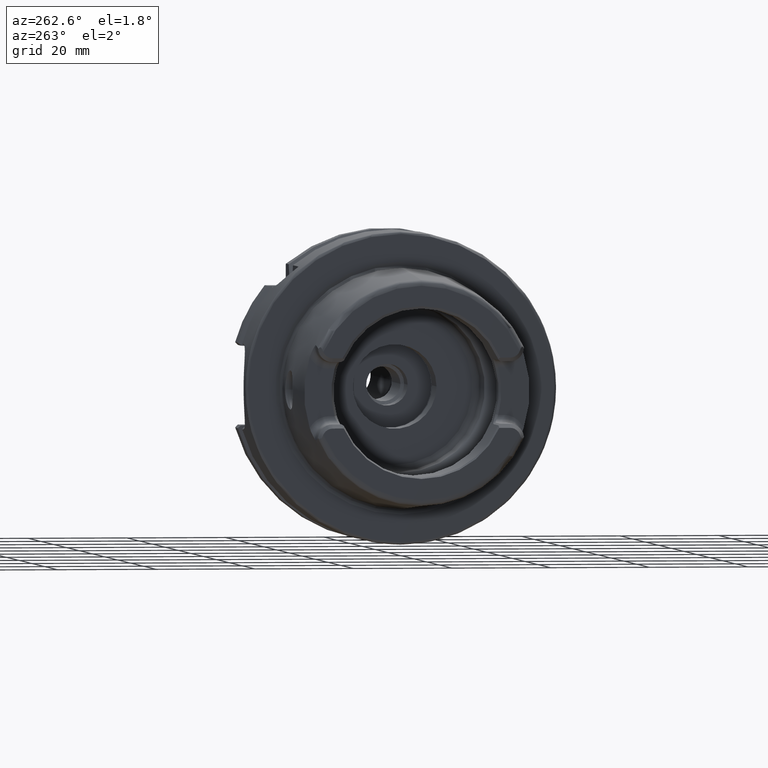
[diagram: clean part render]
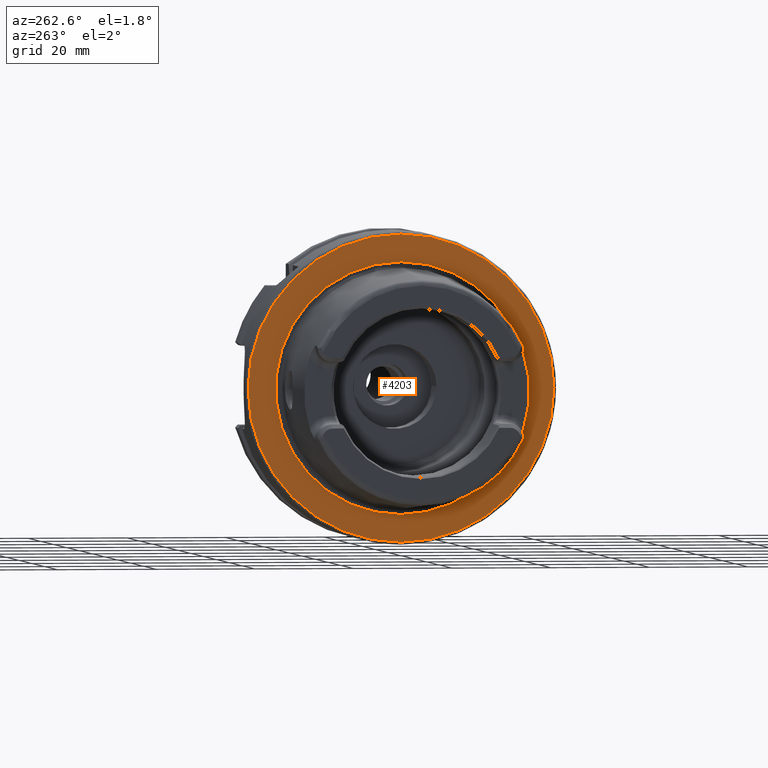
[diagram: same view with one face highlighted and labeled with its STEP entity id]
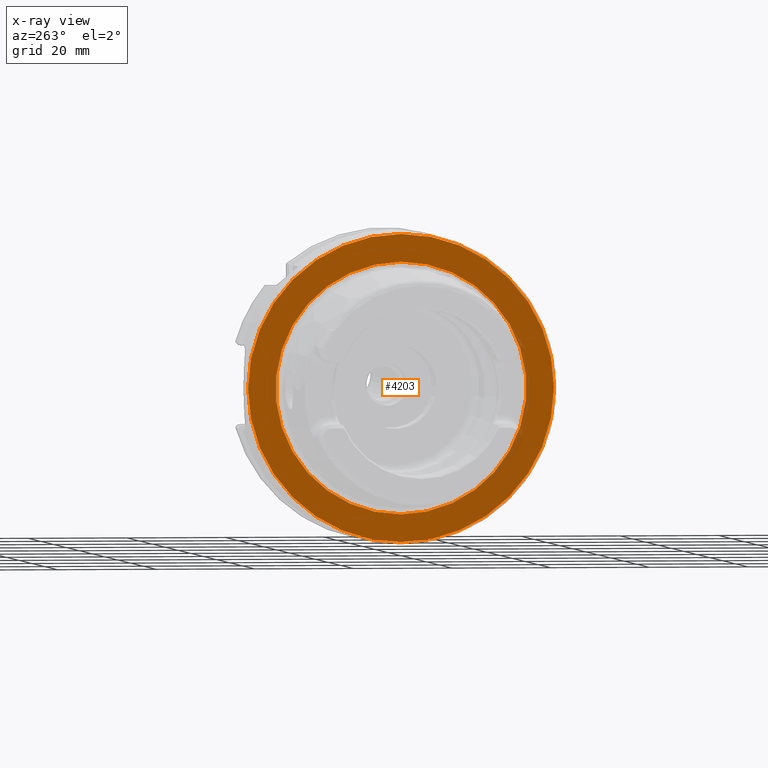
[diagram: x-ray of the same camera — body ghosted, the highlighted face saturated]
A machine part, auxiliary view. The second image highlights one B-rep face of the part: STEP entity #4203.
The next image is the same camera in x-ray: the body ghosted, the highlighted face saturated — about 3% of this face is hidden behind the body in this view.
In plain terms, the highlighted planar face has unit normal (1, 0, 0).
Its self-contained STEP definition (entity closure, byte-faithful):
#1074=CARTESIAN_POINT('',(0.E0,0.E0,0.E0));
#1075=DIRECTION('',(1.E0,0.E0,0.E0));
#1076=DIRECTION('',(0.E0,0.E0,-1.E0));
#1077=AXIS2_PLACEMENT_3D('',#1074,#1075,#1076);
#1079=CARTESIAN_POINT('',(0.E0,0.E0,0.E0));
#1080=DIRECTION('',(1.E0,0.E0,0.E0));
#1081=DIRECTION('',(0.E0,0.E0,1.E0));
#1082=AXIS2_PLACEMENT_3D('',#1079,#1080,#1081);
#1084=CARTESIAN_POINT('',(0.E0,0.E0,0.E0));
#1085=DIRECTION('',(-1.E0,0.E0,0.E0));
#1086=DIRECTION('',(0.E0,0.E0,1.E0));
#1087=AXIS2_PLACEMENT_3D('',#1084,#1085,#1086);
#1089=CARTESIAN_POINT('',(0.E0,0.E0,0.E0));
#1090=DIRECTION('',(-1.E0,0.E0,0.E0));
#1091=DIRECTION('',(0.E0,0.E0,-1.E0));
#1092=AXIS2_PLACEMENT_3D('',#1089,#1090,#1091);
#2755=CARTESIAN_POINT('',(0.E0,0.E0,-2.54204E1));
#2756=CARTESIAN_POINT('',(0.E0,0.E0,2.54204E1));
#2757=VERTEX_POINT('',#2755);
#2758=VERTEX_POINT('',#2756);
#3084=CARTESIAN_POINT('',(0.E0,0.E0,3.1E1));
#3085=CARTESIAN_POINT('',(0.E0,1.138921523207E-14,-3.1E1));
#3086=VERTEX_POINT('',#3084);
#3087=VERTEX_POINT('',#3085);
#4187=CARTESIAN_POINT('',(0.E0,0.E0,0.E0));
#4188=DIRECTION('',(1.E0,0.E0,0.E0));
#4189=DIRECTION('',(0.E0,0.E0,1.E0));
#4190=AXIS2_PLACEMENT_3D('',#4187,#4188,#4189);
#4191=PLANE('',#4190);
#4192=ORIENTED_EDGE('',*,*,#4177,.F.);
#4194=ORIENTED_EDGE('',*,*,#4193,.F.);
#4195=EDGE_LOOP('',(#4192,#4194));
#4196=FACE_OUTER_BOUND('',#4195,.F.);
#4198=ORIENTED_EDGE('',*,*,#4197,.F.);
#4200=ORIENTED_EDGE('',*,*,#4199,.F.);
#4201=EDGE_LOOP('',(#4198,#4200));
#4202=FACE_BOUND('',#4201,.F.);
#4203=ADVANCED_FACE('',(#4196,#4202),#4191,.F.);
#1078=CIRCLE('',#1077,2.54204E1);
#1083=CIRCLE('',#1082,2.54204E1);
#1088=CIRCLE('',#1087,3.1E1);
#1093=CIRCLE('',#1092,3.1E1);
#4177=EDGE_CURVE('',#3086,#3087,#1088,.T.);
#4193=EDGE_CURVE('',#3087,#3086,#1093,.T.);
#4197=EDGE_CURVE('',#2757,#2758,#1078,.T.);
#4199=EDGE_CURVE('',#2758,#2757,#1083,.T.);